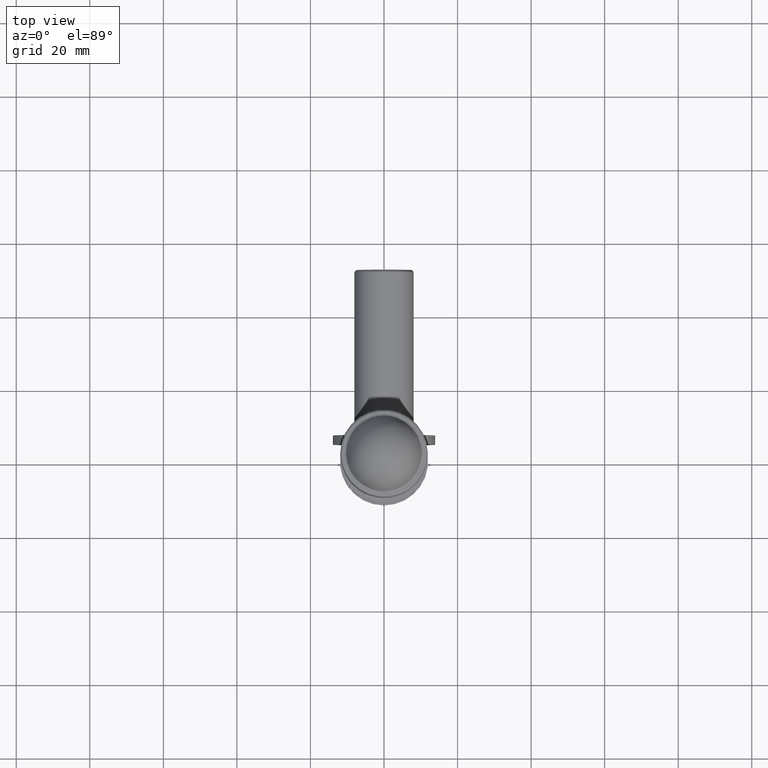
[diagram: clean part render]
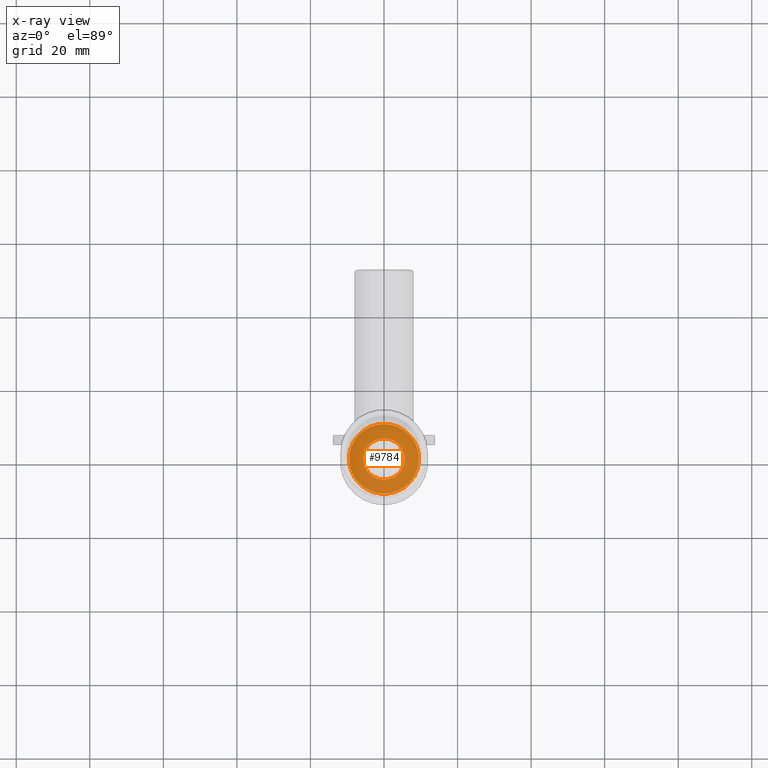
[diagram: x-ray — body ghosted, one internal face saturated and labeled with its STEP entity id]
A machine part, top view, then the same camera in x-ray: the body is ghosted and one INTERNAL B-rep face — a face not visible from any outside direction — is saturated and labeled: STEP entity #9784.
In plain terms, the highlighted planar face has unit normal (0, 0, 1).
Its self-contained STEP definition (entity closure, byte-faithful):
#97 = AXIS2_PLACEMENT_3D ( 'NONE', #10900, #8525, #5057 ) ;
#128 = DIRECTION ( 'NONE',  ( 0.000000000000000000, 1.000000000000000000, 0.000000000000000000 ) ) ;
#234 = EDGE_LOOP ( 'NONE', ( #3791, #7801, #13854, #3705, #10856, #8631 ) ) ;
#670 = FACE_OUTER_BOUND ( 'NONE', #234, .T. ) ;
#683 = AXIS2_PLACEMENT_3D ( 'NONE', #2098, #13745, #3290 ) ;
#961 = CIRCLE ( 'NONE', #683, 9.499999999999998224 ) ;
#1234 = CARTESIAN_POINT ( 'NONE',  ( 0.000000000000000000, -3.500000000000000000, 0.000000000000000000 ) ) ;
#1405 = FACE_BOUND ( 'NONE', #1691, .T. ) ;
#1691 = EDGE_LOOP ( 'NONE', ( #11035 ) ) ;
#1801 = EDGE_CURVE ( 'NONE', #5954, #5056, #9990, .T. ) ;
#1929 = CARTESIAN_POINT ( 'NONE',  ( 0.000000000000000000, -3.500000000000000000, 0.000000000000000000 ) ) ;
#1973 = CIRCLE ( 'NONE', #11038, 9.499999999999998224 ) ;
#2066 = CARTESIAN_POINT ( 'NONE',  ( -8.227241335952165002, -3.500000000000000000, -4.750000000000000000 ) ) ;
#2098 = CARTESIAN_POINT ( 'NONE',  ( 0.000000000000000000, -3.500000000000000000, 0.000000000000000000 ) ) ;
#2261 = EDGE_CURVE ( 'NONE', #3916, #8340, #9647, .T. ) ;
#2495 = EDGE_CURVE ( 'NONE', #13853, #3916, #1973, .T. ) ;
#3104 = DIRECTION ( 'NONE',  ( 0.000000000000000000, 1.000000000000000000, 0.000000000000000000 ) ) ;
#3157 = AXIS2_PLACEMENT_3D ( 'NONE', #5077, #14323, #7321 ) ;
#3290 = DIRECTION ( 'NONE',  ( 0.000000000000000000, 0.000000000000000000, 1.000000000000000000 ) ) ;
#3372 = AXIS2_PLACEMENT_3D ( 'NONE', #1234, #14284, #7225 ) ;
#3416 = CIRCLE ( 'NONE', #14385, 5.600000000000000533 ) ;
#3705 = ORIENTED_EDGE ( 'NONE', *, *, #1801, .T. ) ;
#3734 = DIRECTION ( 'NONE',  ( -0.000000000000000000, -1.000000000000000000, -0.000000000000000000 ) ) ;
#3791 = ORIENTED_EDGE ( 'NONE', *, *, #2261, .T. ) ;
#3916 = VERTEX_POINT ( 'NONE', #11517 ) ;
#4582 = CIRCLE ( 'NONE', #3157, 9.499999999999998224 ) ;
#4649 = AXIS2_PLACEMENT_3D ( 'NONE', #12938, #128, #14078 ) ;
#5056 = VERTEX_POINT ( 'NONE', #11887 ) ;
#5057 = DIRECTION ( 'NONE',  ( 0.000000000000000000, 0.000000000000000000, -1.000000000000000000 ) ) ;
#5077 = CARTESIAN_POINT ( 'NONE',  ( 0.000000000000000000, -3.500000000000000000, 0.000000000000000000 ) ) ;
#5160 = DIRECTION ( 'NONE',  ( 0.000000000000000000, 0.000000000000000000, 1.000000000000000000 ) ) ;
#5594 = CIRCLE ( 'NONE', #97, 9.499999999999998224 ) ;
#5954 = VERTEX_POINT ( 'NONE', #2066 ) ;
#6614 = DIRECTION ( 'NONE',  ( -0.000000000000000000, -1.000000000000000000, -0.000000000000000000 ) ) ;
#7225 = DIRECTION ( 'NONE',  ( 1.776356839400250465E-15, 0.000000000000000000, 1.000000000000000000 ) ) ;
#7321 = DIRECTION ( 'NONE',  ( 0.000000000000000000, 0.000000000000000000, 1.000000000000000000 ) ) ;
#7801 = ORIENTED_EDGE ( 'NONE', *, *, #14813, .T. ) ;
#7826 = DIRECTION ( 'NONE',  ( -3.552713678800500929E-15, 0.000000000000000000, 1.000000000000000000 ) ) ;
#8157 = CARTESIAN_POINT ( 'NONE',  ( 8.227241335952163226, -3.500000000000000000, -4.750000000000003553 ) ) ;
#8340 = VERTEX_POINT ( 'NONE', #9553 ) ;
#8385 = EDGE_CURVE ( 'NONE', #10675, #5954, #4582, .T. ) ;
#8525 = DIRECTION ( 'NONE',  ( 0.000000000000000000, -1.000000000000000000, 0.000000000000000000 ) ) ;
#8631 = ORIENTED_EDGE ( 'NONE', *, *, #2495, .T. ) ;
#8865 = AXIS2_PLACEMENT_3D ( 'NONE', #12281, #6614, #7826 ) ;
#9517 = PLANE ( 'NONE',  #4649 ) ;
#9553 = CARTESIAN_POINT ( 'NONE',  ( 0.000000000000000000, -3.500000000000000000, 9.499999999999998224 ) ) ;
#9647 = CIRCLE ( 'NONE', #8865, 9.499999999999998224 ) ;
#9730 = VERTEX_POINT ( 'NONE', #10453 ) ;
#9784 = ADVANCED_FACE ( 'NONE', ( #1405, #670 ), #9517, .F. ) ;
#9990 = CIRCLE ( 'NONE', #3372, 9.499999999999998224 ) ;
#10453 = CARTESIAN_POINT ( 'NONE',  ( 0.000000000000000000, -3.500000000000000000, 5.600000000000000533 ) ) ;
#10675 = VERTEX_POINT ( 'NONE', #15125 ) ;
#10856 = ORIENTED_EDGE ( 'NONE', *, *, #13565, .T. ) ;
#10900 = CARTESIAN_POINT ( 'NONE',  ( 0.000000000000000000, -3.500000000000000000, 0.000000000000000000 ) ) ;
#11035 = ORIENTED_EDGE ( 'NONE', *, *, #12066, .T. ) ;
#11038 = AXIS2_PLACEMENT_3D ( 'NONE', #11780, #3734, #5160 ) ;
#11210 = DIRECTION ( 'NONE',  ( 0.000000000000000000, 0.000000000000000000, 1.000000000000000000 ) ) ;
#11517 = CARTESIAN_POINT ( 'NONE',  ( 8.227241335952165002, -3.500000000000000000, 4.749999999999998224 ) ) ;
#11780 = CARTESIAN_POINT ( 'NONE',  ( 0.000000000000000000, -3.500000000000000000, 0.000000000000000000 ) ) ;
#11887 = CARTESIAN_POINT ( 'NONE',  ( -1.502314598737159623E-15, -3.500000000000000000, -9.499999999999998224 ) ) ;
#12066 = EDGE_CURVE ( 'NONE', #9730, #9730, #3416, .T. ) ;
#12281 = CARTESIAN_POINT ( 'NONE',  ( 0.000000000000000000, -3.500000000000000000, 0.000000000000000000 ) ) ;
#12938 = CARTESIAN_POINT ( 'NONE',  ( 0.000000000000000000, -3.500000000000000000, 0.000000000000000000 ) ) ;
#13565 = EDGE_CURVE ( 'NONE', #5056, #13853, #5594, .T. ) ;
#13745 = DIRECTION ( 'NONE',  ( -0.000000000000000000, -1.000000000000000000, -0.000000000000000000 ) ) ;
#13853 = VERTEX_POINT ( 'NONE', #8157 ) ;
#13854 = ORIENTED_EDGE ( 'NONE', *, *, #8385, .T. ) ;
#14078 = DIRECTION ( 'NONE',  ( 0.000000000000000000, -0.000000000000000000, 1.000000000000000000 ) ) ;
#14284 = DIRECTION ( 'NONE',  ( -0.000000000000000000, -1.000000000000000000, -0.000000000000000000 ) ) ;
#14323 = DIRECTION ( 'NONE',  ( -0.000000000000000000, -1.000000000000000000, -0.000000000000000000 ) ) ;
#14385 = AXIS2_PLACEMENT_3D ( 'NONE', #1929, #3104, #11210 ) ;
#14813 = EDGE_CURVE ( 'NONE', #8340, #10675, #961, .T. ) ;
#15125 = CARTESIAN_POINT ( 'NONE',  ( -8.227241335952165002, -3.500000000000000000, 4.749999999999999112 ) ) ;